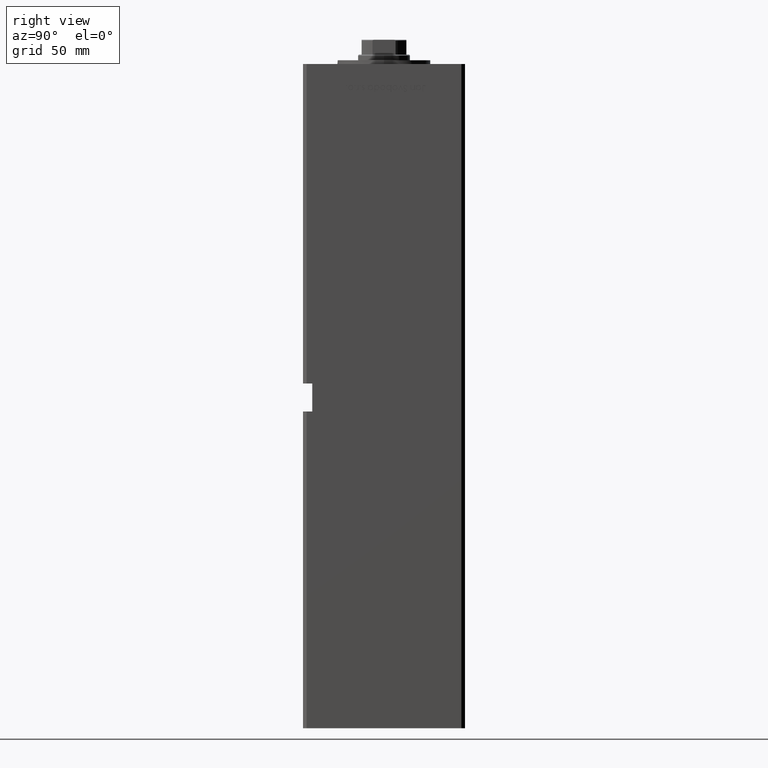
[diagram: clean part render]
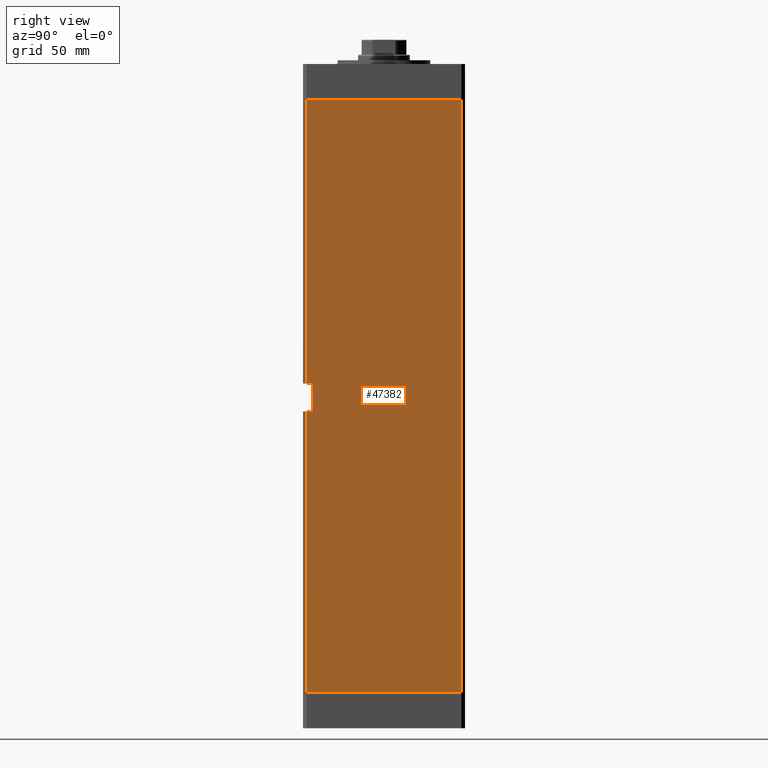
[diagram: same view with one face highlighted and labeled with its STEP entity id]
A machine part, right view. The second image highlights one B-rep face of the part: STEP entity #47382.
In plain terms, the highlighted planar face has unit normal (1, -0, 0).
Its self-contained STEP definition (entity closure, byte-faithful):
#812 = DIRECTION ( 'NONE',  ( -0.000000000000000000, -0.000000000000000000, -1.000000000000000000 ) ) ;
#974 = LINE ( 'NONE', #8257, #42605 ) ;
#1632 = EDGE_CURVE ( 'NONE', #23329, #10265, #7411, .T. ) ;
#3900 = DIRECTION ( 'NONE',  ( -0.000000000000000000, -0.000000000000000000, 1.000000000000000000 ) ) ;
#7001 = ORIENTED_EDGE ( 'NONE', *, *, #22044, .F. ) ;
#7411 = LINE ( 'NONE', #49034, #43299 ) ;
#8257 = CARTESIAN_POINT ( 'NONE',  ( 50.00000000000000000, -38.50000000000000000, 151.0000000000000000 ) ) ;
#10265 = VERTEX_POINT ( 'NONE', #14501 ) ;
#10746 = ORIENTED_EDGE ( 'NONE', *, *, #18348, .F. ) ;
#13177 = LINE ( 'NONE', #41370, #24659 ) ;
#13483 = CARTESIAN_POINT ( 'NONE',  ( 50.00000000000001421, 41.49999999999999289, 318.5000000000000000 ) ) ;
#14501 = CARTESIAN_POINT ( 'NONE',  ( 50.00000000000000000, -38.50000000000000000, 166.0000000000000000 ) ) ;
#14550 = LINE ( 'NONE', #19350, #18382 ) ;
#14914 = CARTESIAN_POINT ( 'NONE',  ( 50.00000000000001421, 41.49999999999999289, 0.000000000000000000 ) ) ;
#14995 = ORIENTED_EDGE ( 'NONE', *, *, #32416, .T. ) ;
#15124 = ORIENTED_EDGE ( 'NONE', *, *, #39830, .T. ) ;
#15625 = EDGE_CURVE ( 'NONE', #28494, #32626, #34528, .T. ) ;
#15630 = VERTEX_POINT ( 'NONE', #46900 ) ;
#15660 = ORIENTED_EDGE ( 'NONE', *, *, #35417, .T. ) ;
#16761 = CARTESIAN_POINT ( 'NONE',  ( 50.00000000000000000, -41.49999999999999289, 151.0000000000000000 ) ) ;
#18348 = EDGE_CURVE ( 'NONE', #44580, #28494, #36355, .T. ) ;
#18382 = VECTOR ( 'NONE', #51607, 1000.000000000000000 ) ;
#18651 = VECTOR ( 'NONE', #33731, 1000.000000000000000 ) ;
#18905 = CARTESIAN_POINT ( 'NONE',  ( 50.00000000000001421, 41.49999999999999289, 318.5000000000000000 ) ) ;
#19350 = CARTESIAN_POINT ( 'NONE',  ( 50.00000000000000000, -38.50000000000000000, 166.0000000000000000 ) ) ;
#19724 = CARTESIAN_POINT ( 'NONE',  ( 50.00000000000001421, 41.49999999999999289, 318.5000000000000000 ) ) ;
#20376 = AXIS2_PLACEMENT_3D ( 'NONE', #47113, #39034, #33949 ) ;
#20814 = VERTEX_POINT ( 'NONE', #16761 ) ;
#22044 = EDGE_CURVE ( 'NONE', #10265, #42125, #14550, .T. ) ;
#22641 = PLANE ( 'NONE',  #20376 ) ;
#23329 = VERTEX_POINT ( 'NONE', #35168 ) ;
#24659 = VECTOR ( 'NONE', #812, 1000.000000000000000 ) ;
#25133 = CARTESIAN_POINT ( 'NONE',  ( 49.99999999999998579, -41.49999999999999289, 318.5000000000000000 ) ) ;
#26528 = VECTOR ( 'NONE', #51674, 1000.000000000000000 ) ;
#26861 = ORIENTED_EDGE ( 'NONE', *, *, #1632, .F. ) ;
#28494 = VERTEX_POINT ( 'NONE', #30979 ) ;
#30979 = CARTESIAN_POINT ( 'NONE',  ( 50.00000000000001421, 41.49999999999999289, 0.000000000000000000 ) ) ;
#32416 = EDGE_CURVE ( 'NONE', #23329, #20814, #974, .T. ) ;
#32626 = VERTEX_POINT ( 'NONE', #48739 ) ;
#33731 = DIRECTION ( 'NONE',  ( -0.000000000000000000, -0.000000000000000000, -1.000000000000000000 ) ) ;
#33949 = DIRECTION ( 'NONE',  ( 3.344045254895050480E-16, 1.000000000000000000, 0.000000000000000000 ) ) ;
#34528 = LINE ( 'NONE', #14914, #35357 ) ;
#34733 = FACE_OUTER_BOUND ( 'NONE', #47810, .T. ) ;
#35168 = CARTESIAN_POINT ( 'NONE',  ( 49.99999999999998579, -38.49999999999999289, 151.0000000000000000 ) ) ;
#35357 = VECTOR ( 'NONE', #42601, 1000.000000000000000 ) ;
#35417 = EDGE_CURVE ( 'NONE', #20814, #32626, #45560, .T. ) ;
#36355 = LINE ( 'NONE', #19724, #37157 ) ;
#37157 = VECTOR ( 'NONE', #53039, 1000.000000000000000 ) ;
#39034 = DIRECTION ( 'NONE',  ( 1.000000000000000000, -3.344045254895050480E-16, 0.000000000000000000 ) ) ;
#39830 = EDGE_CURVE ( 'NONE', #44580, #15630, #43859, .T. ) ;
#41370 = CARTESIAN_POINT ( 'NONE',  ( 49.99999999999998579, -41.49999999999999289, 318.5000000000000000 ) ) ;
#42071 = DIRECTION ( 'NONE',  ( -0.000000000000000000, -1.000000000000000000, -0.000000000000000000 ) ) ;
#42125 = VERTEX_POINT ( 'NONE', #44080 ) ;
#42601 = DIRECTION ( 'NONE',  ( -3.344045254895050973E-16, -1.000000000000000000, 0.000000000000000000 ) ) ;
#42605 = VECTOR ( 'NONE', #42071, 1000.000000000000000 ) ;
#43299 = VECTOR ( 'NONE', #3900, 1000.000000000000000 ) ;
#43859 = LINE ( 'NONE', #18905, #26528 ) ;
#44038 = ORIENTED_EDGE ( 'NONE', *, *, #15625, .F. ) ;
#44080 = CARTESIAN_POINT ( 'NONE',  ( 50.00000000000000000, -41.49999999999999289, 166.0000000000000000 ) ) ;
#44580 = VERTEX_POINT ( 'NONE', #13483 ) ;
#44913 = ORIENTED_EDGE ( 'NONE', *, *, #51570, .T. ) ;
#45560 = LINE ( 'NONE', #25133, #18651 ) ;
#46900 = CARTESIAN_POINT ( 'NONE',  ( 49.99999999999998579, -41.49999999999999289, 318.5000000000000000 ) ) ;
#47113 = CARTESIAN_POINT ( 'NONE',  ( 50.00000000000001421, 41.49999999999999289, 318.5000000000000000 ) ) ;
#47382 = ADVANCED_FACE ( 'NONE', ( #34733 ), #22641, .T. ) ;
#47810 = EDGE_LOOP ( 'NONE', ( #14995, #15660, #44038, #10746, #15124, #44913, #7001, #26861 ) ) ;
#48739 = CARTESIAN_POINT ( 'NONE',  ( 49.99999999999998579, -41.49999999999999289, 0.000000000000000000 ) ) ;
#49034 = CARTESIAN_POINT ( 'NONE',  ( 50.00000000000000000, -38.50000000000000000, 166.0000000000000000 ) ) ;
#51570 = EDGE_CURVE ( 'NONE', #15630, #42125, #13177, .T. ) ;
#51607 = DIRECTION ( 'NONE',  ( -0.000000000000000000, -1.000000000000000000, -0.000000000000000000 ) ) ;
#51674 = DIRECTION ( 'NONE',  ( -3.344045254895050973E-16, -1.000000000000000000, 0.000000000000000000 ) ) ;
#53039 = DIRECTION ( 'NONE',  ( -0.000000000000000000, -0.000000000000000000, -1.000000000000000000 ) ) ;